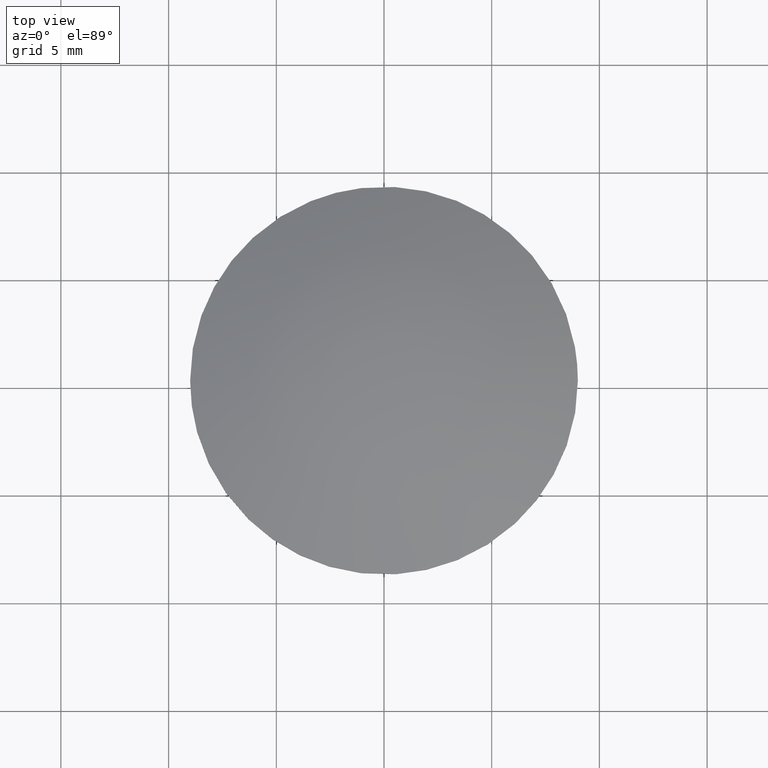
[diagram: clean part render]
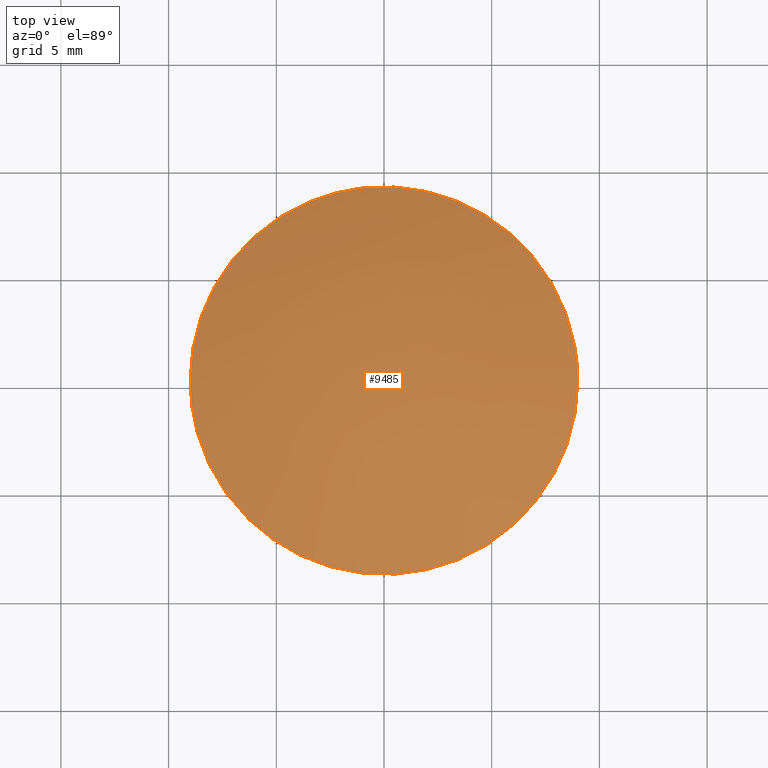
[diagram: same view with one face highlighted and labeled with its STEP entity id]
A machine part, top view. The second image highlights one B-rep face of the part: STEP entity #9485.
In plain terms, the highlighted face is a freeform B-spline surface patch.
Its self-contained STEP definition (entity closure, byte-faithful):
#66=CARTESIAN_POINT('',(-1.062306612131423,8.937085915544259,-2.000000000000013));
#67=VERTEX_POINT('',#66);
#68=CARTESIAN_POINT('',(9.0,0.0,-2.000000000000045));
#69=VERTEX_POINT('',#68);
#70=CARTESIAN_POINT('',(-1.062306612131422,8.937085915544259,-2.000000000000013));
#71=CARTESIAN_POINT('',(-0.533016319049770,9.0,-2.000000000000045));
#72=CARTESIAN_POINT('',(0.0,9.0,-2.000000000000045));
#73=CARTESIAN_POINT('',(9.0,9.0,-2.000000000000045));
#74=CARTESIAN_POINT('',(9.0,0.0,-2.000000000000045));
#82=(BOUNDED_CURVE()B_SPLINE_CURVE(2,(#70,#71,#72,#73,#74),.UNSPECIFIED.,.F.,.U.)B_SPLINE_CURVE_WITH_KNOTS((3,2,3),(0.229562501876970,0.250000000000000,0.500000000000000),.UNSPECIFIED.)CURVE()GEOMETRIC_REPRESENTATION_ITEM()RATIONAL_B_SPLINE_CURVE((0.956026809777252,0.976055981561007,1.0,0.707106781186547,1.0))REPRESENTATION_ITEM(''));
#83=EDGE_CURVE('',#67,#69,#82,.T.);
#85=CARTESIAN_POINT('',(0.549435031264484,-8.983213297390641,-2.000000000000004));
#86=VERTEX_POINT('',#85);
#87=CARTESIAN_POINT('',(9.0,0.0,-2.000000000000045));
#88=CARTESIAN_POINT('',(9.000000000000002,-8.466356324936616,-2.000000000000045));
#89=CARTESIAN_POINT('',(0.549435031264484,-8.983213297390641,-2.000000000000004));
#97=(BOUNDED_CURVE()B_SPLINE_CURVE(2,(#87,#88,#89),.UNSPECIFIED.,.F.,.U.)B_SPLINE_CURVE_WITH_KNOTS((3,3),(0.500000000000000,0.739332997287348),.UNSPECIFIED.)CURVE()GEOMETRIC_REPRESENTATION_ITEM()RATIONAL_B_SPLINE_CURVE((1.0,0.719603952224949,0.976072116782134))REPRESENTATION_ITEM(''));
#98=EDGE_CURVE('',#69,#86,#97,.T.);
#165=CARTESIAN_POINT('',(-9.0,0.0,-2.000000000000045));
#166=VERTEX_POINT('',#165);
#167=CARTESIAN_POINT('',(-9.0,0.0,-2.000000000000045));
#168=CARTESIAN_POINT('',(-9.000000000000002,7.993572084448903,-2.000000000000047));
#169=CARTESIAN_POINT('',(-1.062306612131422,8.937085915544259,-2.000000000000013));
#177=(BOUNDED_CURVE()B_SPLINE_CURVE(2,(#167,#168,#169),.UNSPECIFIED.,.F.,.U.)B_SPLINE_CURVE_WITH_KNOTS((3,3),(0.0,0.229562501876970),.UNSPECIFIED.)CURVE()GEOMETRIC_REPRESENTATION_ITEM()RATIONAL_B_SPLINE_CURVE((1.0,0.731050799625541,0.956026809777252))REPRESENTATION_ITEM(''));
#178=EDGE_CURVE('',#166,#67,#177,.T.);
#212=CARTESIAN_POINT('',(0.549435031264484,-8.983213297390641,-2.000000000000004));
#213=CARTESIAN_POINT('',(0.274973954854772,-9.0,-2.000000000000045));
#214=CARTESIAN_POINT('',(0.0,-9.0,-2.000000000000045));
#215=CARTESIAN_POINT('',(-9.0,-9.0,-2.000000000000045));
#216=CARTESIAN_POINT('',(-9.0,0.0,-2.000000000000045));
#224=(BOUNDED_CURVE()B_SPLINE_CURVE(2,(#212,#213,#214,#215,#216),.UNSPECIFIED.,.F.,.U.)B_SPLINE_CURVE_WITH_KNOTS((3,2,3),(0.739332997287348,0.750000000000000,1.0),.UNSPECIFIED.)CURVE()GEOMETRIC_REPRESENTATION_ITEM()RATIONAL_B_SPLINE_CURVE((0.976072116782134,0.987502828961599,1.0,0.707106781186547,1.0))REPRESENTATION_ITEM(''));
#225=EDGE_CURVE('',#86,#166,#224,.T.);
#9455=CARTESIAN_POINT('',(-9.279243536932626,-9.279038848324696,-4.536006538424974));
#9456=CARTESIAN_POINT('',(-4.901177740399139,-9.802139450969614,-2.395807787272984));
#9457=CARTESIAN_POINT('',(4.901177852664365,-9.802139450969614,-2.395807883310637));
#9458=CARTESIAN_POINT('',(9.279243429499880,-9.279038900292278,-4.536006507631299));
#9459=CARTESIAN_POINT('',(-9.802331264369720,-4.901057537182691,-2.395907564981523));
#9460=CARTESIAN_POINT('',(-5.193972055286571,-5.193857614381667,0.000000044273574));
#9461=CARTESIAN_POINT('',(5.193972199133425,-5.193857614381667,-0.000000057501327));
#9462=CARTESIAN_POINT('',(9.802331177448165,-4.901057566178560,-2.395907519790597));
#9463=CARTESIAN_POINT('',(-9.802331264369720,4.901085131329158,-2.395907552499452));
#9464=CARTESIAN_POINT('',(-5.193972055286571,5.193886853830579,0.000000057501353));
#9465=CARTESIAN_POINT('',(5.193972199133425,5.193886853830580,-0.000000044273548));
#9466=CARTESIAN_POINT('',(9.802331177448165,4.901085160325192,-2.395907507308526));
#9467=CARTESIAN_POINT('',(-9.279237951318494,9.279085554392159,-4.536029367110913));
#9468=CARTESIAN_POINT('',(-4.901174623830690,9.802188454382717,-2.395833263825384));
#9469=CARTESIAN_POINT('',(4.901174736095579,9.802188454382717,-2.395833359862974));
#9470=CARTESIAN_POINT('',(9.279237843885539,9.279085606359971,-4.536029336317386));
#9478=(BOUNDED_SURFACE()B_SPLINE_SURFACE(2,2,((#9455,#9459,#9463,#9467),(#9456,#9460,#9464,#9468),(#9457,#9461,#9465,#9469),(#9458,#9462,#9466,#9470)),.UNSPECIFIED.,.F.,.F.,.U.)B_SPLINE_SURFACE_WITH_KNOTS((3,1,3),(3,1,3),(3.021722316741943,12.906286260541410,22.790849685668949),(3.021940555071831,12.906286260541410,22.790687714123731),.UNSPECIFIED.)GEOMETRIC_REPRESENTATION_ITEM()RATIONAL_B_SPLINE_SURFACE(((1.119481809298152,1.059742223665196,1.059742223665196,1.119482483167449),(1.059739585632955,1.0,1.0,1.059740259502252),(1.059739585632955,1.0,1.0,1.059740259502252),(1.119481803028455,1.059742217395499,1.059742217395499,1.119482476897752)))REPRESENTATION_ITEM('')SURFACE());
#9479=ORIENTED_EDGE('',*,*,#225,.F.);
#9480=ORIENTED_EDGE('',*,*,#98,.F.);
#9481=ORIENTED_EDGE('',*,*,#83,.F.);
#9482=ORIENTED_EDGE('',*,*,#178,.F.);
#9483=EDGE_LOOP('',(#9479,#9480,#9481,#9482));
#9484=FACE_OUTER_BOUND('',#9483,.T.);
#9485=ADVANCED_FACE('',(#9484),#9478,.T.);